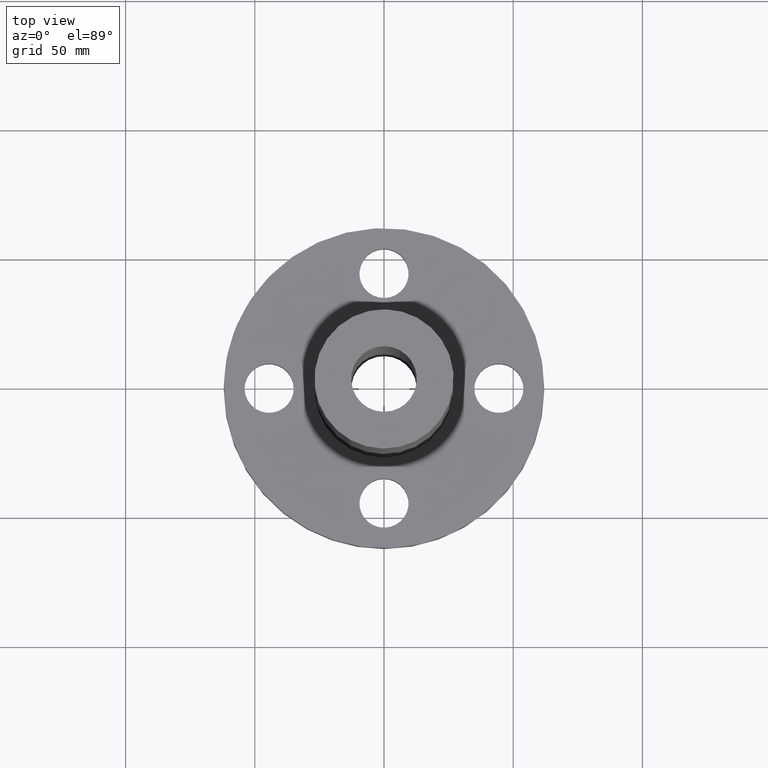
[diagram: clean part render]
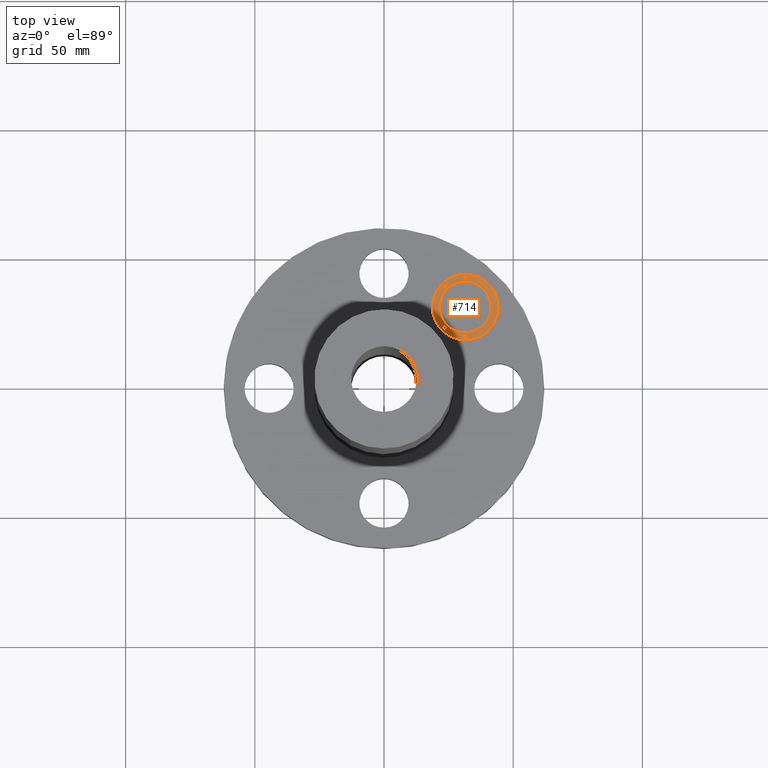
[diagram: same view with one face highlighted and labeled with its STEP entity id]
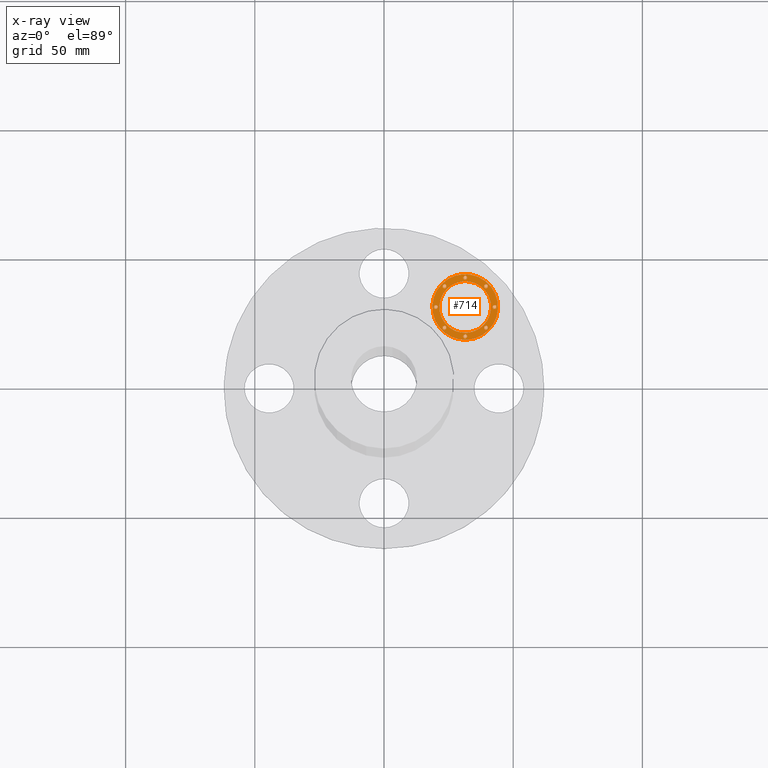
[diagram: x-ray of the same camera — body ghosted, the highlighted face saturated]
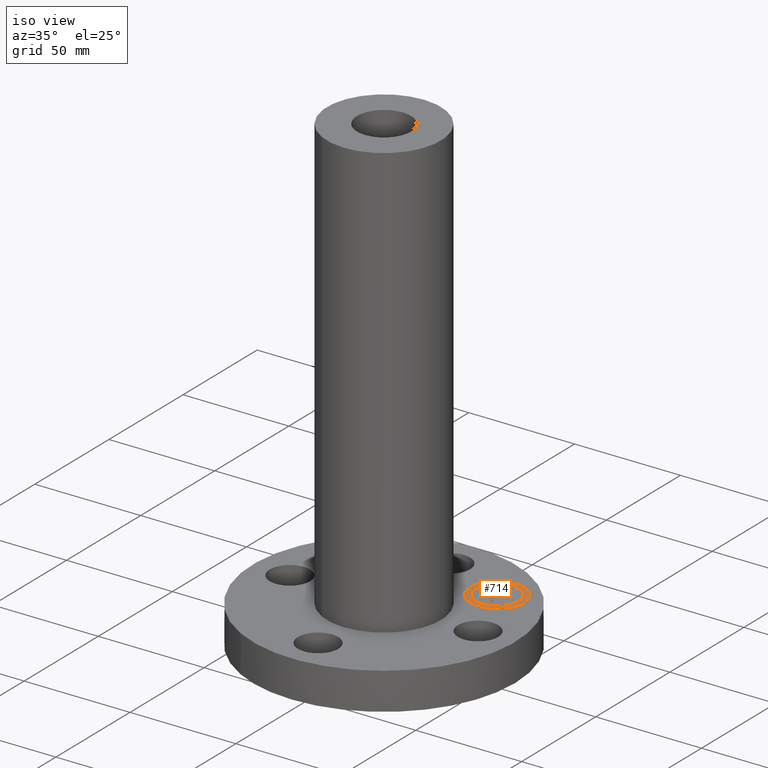
[diagram: same view with one face highlighted and labeled with its STEP entity id]
A machine part, top view. The second image highlights one B-rep face of the part: STEP entity #714.
The next image is the same camera in x-ray: the body ghosted, the highlighted face saturated — about 0% of this face is hidden behind the body in this view.
A second angle (iso view) of the same face is appended — the face is thin or edge-on in the first view.
In plain terms, the highlighted planar face has unit normal (0, 0, 1).
Its self-contained STEP definition (entity closure, byte-faithful):
#478=AXIS2_PLACEMENT_3D('Circle Axis2P3D',#476,#477,$) ;
#498=AXIS2_PLACEMENT_3D('Circle Axis2P3D',#496,#497,$) ;
#546=AXIS2_PLACEMENT_3D('Plane Axis2P3D',#543,#544,#545) ;
#554=AXIS2_PLACEMENT_3D('Circle Axis2P3D',#552,#553,$) ;
#563=AXIS2_PLACEMENT_3D('Circle Axis2P3D',#561,#562,$) ;
#572=AXIS2_PLACEMENT_3D('Circle Axis2P3D',#570,#571,$) ;
#581=AXIS2_PLACEMENT_3D('Circle Axis2P3D',#579,#580,$) ;
#590=AXIS2_PLACEMENT_3D('Circle Axis2P3D',#588,#589,$) ;
#599=AXIS2_PLACEMENT_3D('Circle Axis2P3D',#597,#598,$) ;
#608=AXIS2_PLACEMENT_3D('Circle Axis2P3D',#606,#607,$) ;
#617=AXIS2_PLACEMENT_3D('Circle Axis2P3D',#615,#616,$) ;
#626=AXIS2_PLACEMENT_3D('Circle Axis2P3D',#624,#625,$) ;
#635=AXIS2_PLACEMENT_3D('Circle Axis2P3D',#633,#634,$) ;
#644=AXIS2_PLACEMENT_3D('Circle Axis2P3D',#642,#643,$) ;
#653=AXIS2_PLACEMENT_3D('Circle Axis2P3D',#651,#652,$) ;
#662=AXIS2_PLACEMENT_3D('Circle Axis2P3D',#660,#661,$) ;
#671=AXIS2_PLACEMENT_3D('Circle Axis2P3D',#669,#670,$) ;
#680=AXIS2_PLACEMENT_3D('Circle Axis2P3D',#678,#679,$) ;
#689=AXIS2_PLACEMENT_3D('Circle Axis2P3D',#687,#688,$) ;
#698=AXIS2_PLACEMENT_3D('Circle Axis2P3D',#696,#697,$) ;
#707=AXIS2_PLACEMENT_3D('Circle Axis2P3D',#705,#706,$) ;
#466=CARTESIAN_POINT('Vertex',(0.883883480022,1.59099025414,0.685000000003)) ;
#473=CARTESIAN_POINT('Vertex',(1.59099025414,0.883883480022,0.685000000003)) ;
#476=CARTESIAN_POINT('Axis2P3D Location',(1.23743686708,1.23743686708,0.685000000003)) ;
#496=CARTESIAN_POINT('Axis2P3D Location',(1.23743686708,1.23743686708,0.685000000003)) ;
#543=CARTESIAN_POINT('Axis2P3D Location',(0.,0.,0.685000000003)) ;
#552=CARTESIAN_POINT('Axis2P3D Location',(1.23743686708,1.23743686708,0.685000000003)) ;
#556=CARTESIAN_POINT('Vertex',(1.51599408113,0.958879653035,0.685000000003)) ;
#558=CARTESIAN_POINT('Vertex',(0.958879653035,1.51599408113,0.685000000003)) ;
#561=CARTESIAN_POINT('Axis2P3D Location',(1.23743686708,1.23743686708,0.685000000003)) ;
#570=CARTESIAN_POINT('Axis2P3D Location',(0.921381566528,0.921381566528,0.685000000003)) ;
#574=CARTESIAN_POINT('Vertex',(0.942809044532,0.899954088525,0.685000000003)) ;
#576=CARTESIAN_POINT('Vertex',(0.899954088525,0.942809044532,0.685000000003)) ;
#579=CARTESIAN_POINT('Axis2P3D Location',(0.921381566528,0.921381566528,0.685000000003)) ;
#588=CARTESIAN_POINT('Axis2P3D Location',(0.921381566528,1.55349216763,0.685000000003)) ;
#592=CARTESIAN_POINT('Vertex',(0.942809044532,1.53206468963,0.685000000003)) ;
#594=CARTESIAN_POINT('Vertex',(0.899954088525,1.57491964564,0.685000000003)) ;
#597=CARTESIAN_POINT('Axis2P3D Location',(0.921381566528,1.55349216763,0.685000000003)) ;
#606=CARTESIAN_POINT('Axis2P3D Location',(0.79046717458,1.23743686708,0.685000000003)) ;
#610=CARTESIAN_POINT('Vertex',(0.811894652583,1.21600938908,0.685000000003)) ;
#612=CARTESIAN_POINT('Vertex',(0.769039696576,1.25886434508,0.685000000003)) ;
#615=CARTESIAN_POINT('Axis2P3D Location',(0.79046717458,1.23743686708,0.685000000003)) ;
#624=CARTESIAN_POINT('Axis2P3D Location',(1.55349216763,1.55349216763,0.685000000003)) ;
#628=CARTESIAN_POINT('Vertex',(1.57491964564,1.53206468963,0.685000000003)) ;
#630=CARTESIAN_POINT('Vertex',(1.53206468963,1.57491964564,0.685000000003)) ;
#633=CARTESIAN_POINT('Axis2P3D Location',(1.55349216763,1.55349216763,0.685000000003)) ;
#642=CARTESIAN_POINT('Axis2P3D Location',(1.23743686708,1.68440655958,0.685000000003)) ;
#646=CARTESIAN_POINT('Vertex',(1.25886434508,1.66297908158,0.685000000003)) ;
#648=CARTESIAN_POINT('Vertex',(1.21600938908,1.70583403759,0.685000000003)) ;
#651=CARTESIAN_POINT('Axis2P3D Location',(1.23743686708,1.68440655958,0.685000000003)) ;
#660=CARTESIAN_POINT('Axis2P3D Location',(1.55349216763,0.921381566529,0.685000000003)) ;
#664=CARTESIAN_POINT('Vertex',(1.53206468963,0.942809044532,0.685000000003)) ;
#666=CARTESIAN_POINT('Vertex',(1.57491964564,0.899954088525,0.685000000003)) ;
#669=CARTESIAN_POINT('Axis2P3D Location',(1.55349216763,0.921381566529,0.685000000003)) ;
#678=CARTESIAN_POINT('Axis2P3D Location',(1.23743686708,0.79046717458,0.685000000003)) ;
#682=CARTESIAN_POINT('Vertex',(1.21600938908,0.811894652583,0.685000000003)) ;
#684=CARTESIAN_POINT('Vertex',(1.25886434508,0.769039696576,0.685000000003)) ;
#687=CARTESIAN_POINT('Axis2P3D Location',(1.23743686708,0.79046717458,0.685000000003)) ;
#696=CARTESIAN_POINT('Axis2P3D Location',(1.68440655958,1.23743686708,0.685000000003)) ;
#700=CARTESIAN_POINT('Vertex',(1.66297908158,1.25886434509,0.685000000003)) ;
#702=CARTESIAN_POINT('Vertex',(1.70583403759,1.21600938908,0.685000000003)) ;
#705=CARTESIAN_POINT('Axis2P3D Location',(1.68440655958,1.23743686708,0.685000000003)) ;
#477=DIRECTION('Axis2P3D Direction',(0.,0.,0.0393700787402)) ;
#497=DIRECTION('Axis2P3D Direction',(0.,0.,0.0393700787402)) ;
#544=DIRECTION('Axis2P3D Direction',(0.,0.,0.0393700787402)) ;
#545=DIRECTION('Axis2P3D XDirection',(0.0393700787402,0.,0.)) ;
#553=DIRECTION('Axis2P3D Direction',(0.,0.,0.0393700787402)) ;
#562=DIRECTION('Axis2P3D Direction',(0.,0.,0.0393700787402)) ;
#571=DIRECTION('Axis2P3D Direction',(0.,0.,0.0393700787402)) ;
#580=DIRECTION('Axis2P3D Direction',(0.,0.,0.0393700787402)) ;
#589=DIRECTION('Axis2P3D Direction',(0.,0.,0.0393700787402)) ;
#598=DIRECTION('Axis2P3D Direction',(0.,0.,0.0393700787402)) ;
#607=DIRECTION('Axis2P3D Direction',(0.,0.,0.0393700787402)) ;
#616=DIRECTION('Axis2P3D Direction',(0.,0.,0.0393700787402)) ;
#625=DIRECTION('Axis2P3D Direction',(0.,0.,0.0393700787402)) ;
#634=DIRECTION('Axis2P3D Direction',(0.,0.,0.0393700787402)) ;
#643=DIRECTION('Axis2P3D Direction',(0.,0.,0.0393700787402)) ;
#652=DIRECTION('Axis2P3D Direction',(0.,0.,0.0393700787402)) ;
#661=DIRECTION('Axis2P3D Direction',(0.,0.,0.0393700787402)) ;
#670=DIRECTION('Axis2P3D Direction',(0.,0.,0.0393700787402)) ;
#679=DIRECTION('Axis2P3D Direction',(0.,0.,0.0393700787402)) ;
#688=DIRECTION('Axis2P3D Direction',(0.,0.,0.0393700787402)) ;
#697=DIRECTION('Axis2P3D Direction',(0.,0.,0.0393700787402)) ;
#706=DIRECTION('Axis2P3D Direction',(0.,0.,0.0393700787402)) ;
#549=ORIENTED_EDGE('',*,*,#480,.T.) ;
#550=ORIENTED_EDGE('',*,*,#500,.T.) ;
#567=ORIENTED_EDGE('',*,*,#560,.F.) ;
#568=ORIENTED_EDGE('',*,*,#565,.F.) ;
#585=ORIENTED_EDGE('',*,*,#578,.F.) ;
#586=ORIENTED_EDGE('',*,*,#583,.F.) ;
#603=ORIENTED_EDGE('',*,*,#596,.F.) ;
#604=ORIENTED_EDGE('',*,*,#601,.F.) ;
#621=ORIENTED_EDGE('',*,*,#614,.F.) ;
#622=ORIENTED_EDGE('',*,*,#619,.F.) ;
#639=ORIENTED_EDGE('',*,*,#632,.F.) ;
#640=ORIENTED_EDGE('',*,*,#637,.F.) ;
#657=ORIENTED_EDGE('',*,*,#650,.F.) ;
#658=ORIENTED_EDGE('',*,*,#655,.F.) ;
#675=ORIENTED_EDGE('',*,*,#668,.F.) ;
#676=ORIENTED_EDGE('',*,*,#673,.F.) ;
#693=ORIENTED_EDGE('',*,*,#686,.F.) ;
#694=ORIENTED_EDGE('',*,*,#691,.F.) ;
#711=ORIENTED_EDGE('',*,*,#704,.F.) ;
#712=ORIENTED_EDGE('',*,*,#709,.F.) ;
#569=FACE_BOUND('',#566,.T.) ;
#587=FACE_BOUND('',#584,.T.) ;
#605=FACE_BOUND('',#602,.T.) ;
#623=FACE_BOUND('',#620,.T.) ;
#641=FACE_BOUND('',#638,.T.) ;
#659=FACE_BOUND('',#656,.T.) ;
#677=FACE_BOUND('',#674,.T.) ;
#695=FACE_BOUND('',#692,.T.) ;
#713=FACE_BOUND('',#710,.T.) ;
#714=ADVANCED_FACE('PartBody',(#551,#569,#587,#605,#623,#641,#659,#677,#695,#713),#547,.T.) ;
#479=CIRCLE('generated circle',#478,0.499999995002) ;
#499=CIRCLE('generated circle',#498,0.499999995002) ;
#555=CIRCLE('generated circle',#554,0.393939390002) ;
#564=CIRCLE('generated circle',#563,0.393939390002) ;
#573=CIRCLE('generated circle',#572,0.0303030300001) ;
#582=CIRCLE('generated circle',#581,0.0303030300001) ;
#591=CIRCLE('generated circle',#590,0.0303030300001) ;
#600=CIRCLE('generated circle',#599,0.0303030300001) ;
#609=CIRCLE('generated circle',#608,0.0303030300001) ;
#618=CIRCLE('generated circle',#617,0.0303030300001) ;
#627=CIRCLE('generated circle',#626,0.0303030300001) ;
#636=CIRCLE('generated circle',#635,0.0303030300001) ;
#645=CIRCLE('generated circle',#644,0.0303030300001) ;
#654=CIRCLE('generated circle',#653,0.0303030300001) ;
#663=CIRCLE('generated circle',#662,0.0303030300001) ;
#672=CIRCLE('generated circle',#671,0.0303030300001) ;
#681=CIRCLE('generated circle',#680,0.0303030300001) ;
#690=CIRCLE('generated circle',#689,0.0303030300001) ;
#699=CIRCLE('generated circle',#698,0.0303030300001) ;
#708=CIRCLE('generated circle',#707,0.0303030300001) ;
#480=EDGE_CURVE('',#467,#474,#479,.T.) ;
#500=EDGE_CURVE('',#474,#467,#499,.T.) ;
#560=EDGE_CURVE('',#557,#559,#555,.T.) ;
#565=EDGE_CURVE('',#559,#557,#564,.T.) ;
#578=EDGE_CURVE('',#575,#577,#573,.T.) ;
#583=EDGE_CURVE('',#577,#575,#582,.T.) ;
#596=EDGE_CURVE('',#593,#595,#591,.T.) ;
#601=EDGE_CURVE('',#595,#593,#600,.T.) ;
#614=EDGE_CURVE('',#611,#613,#609,.T.) ;
#619=EDGE_CURVE('',#613,#611,#618,.T.) ;
#632=EDGE_CURVE('',#629,#631,#627,.T.) ;
#637=EDGE_CURVE('',#631,#629,#636,.T.) ;
#650=EDGE_CURVE('',#647,#649,#645,.T.) ;
#655=EDGE_CURVE('',#649,#647,#654,.T.) ;
#668=EDGE_CURVE('',#665,#667,#663,.T.) ;
#673=EDGE_CURVE('',#667,#665,#672,.T.) ;
#686=EDGE_CURVE('',#683,#685,#681,.T.) ;
#691=EDGE_CURVE('',#685,#683,#690,.T.) ;
#704=EDGE_CURVE('',#701,#703,#699,.T.) ;
#709=EDGE_CURVE('',#703,#701,#708,.T.) ;
#548=EDGE_LOOP('',(#549,#550)) ;
#566=EDGE_LOOP('',(#567,#568)) ;
#584=EDGE_LOOP('',(#585,#586)) ;
#602=EDGE_LOOP('',(#603,#604)) ;
#620=EDGE_LOOP('',(#621,#622)) ;
#638=EDGE_LOOP('',(#639,#640)) ;
#656=EDGE_LOOP('',(#657,#658)) ;
#674=EDGE_LOOP('',(#675,#676)) ;
#692=EDGE_LOOP('',(#693,#694)) ;
#710=EDGE_LOOP('',(#711,#712)) ;
#551=FACE_OUTER_BOUND('',#548,.T.) ;
#547=PLANE('',#546) ;
#467=VERTEX_POINT('',#466) ;
#474=VERTEX_POINT('',#473) ;
#557=VERTEX_POINT('',#556) ;
#559=VERTEX_POINT('',#558) ;
#575=VERTEX_POINT('',#574) ;
#577=VERTEX_POINT('',#576) ;
#593=VERTEX_POINT('',#592) ;
#595=VERTEX_POINT('',#594) ;
#611=VERTEX_POINT('',#610) ;
#613=VERTEX_POINT('',#612) ;
#629=VERTEX_POINT('',#628) ;
#631=VERTEX_POINT('',#630) ;
#647=VERTEX_POINT('',#646) ;
#649=VERTEX_POINT('',#648) ;
#665=VERTEX_POINT('',#664) ;
#667=VERTEX_POINT('',#666) ;
#683=VERTEX_POINT('',#682) ;
#685=VERTEX_POINT('',#684) ;
#701=VERTEX_POINT('',#700) ;
#703=VERTEX_POINT('',#702) ;